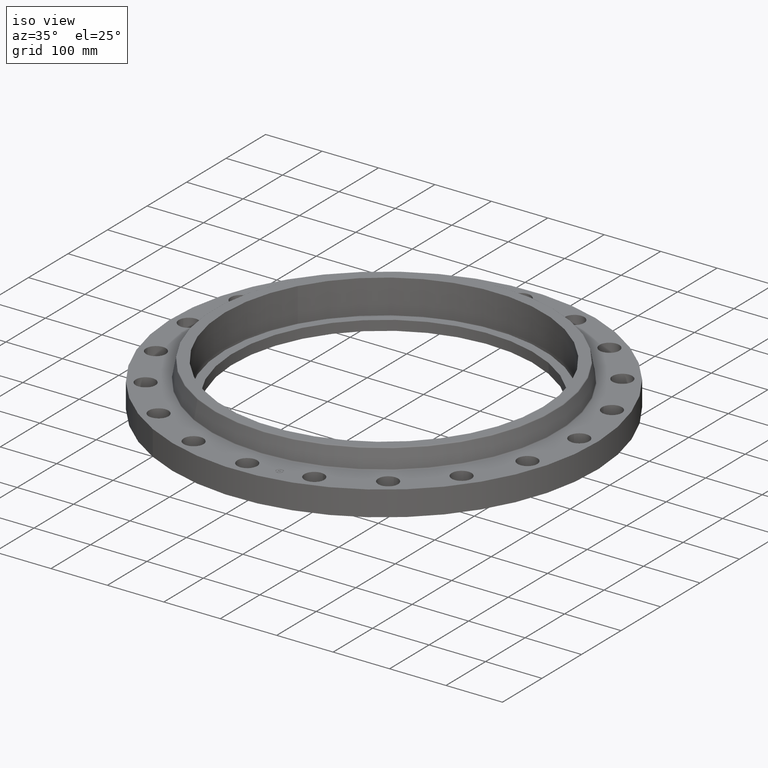
[diagram: clean part render]
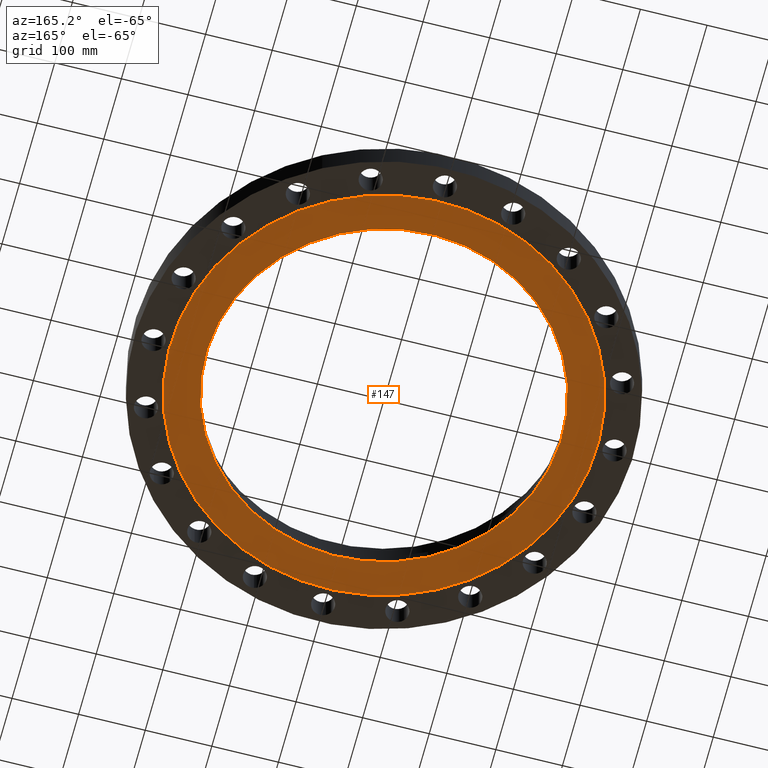
[diagram: tour spotlight — one face highlighted and labeled with its STEP entity id]
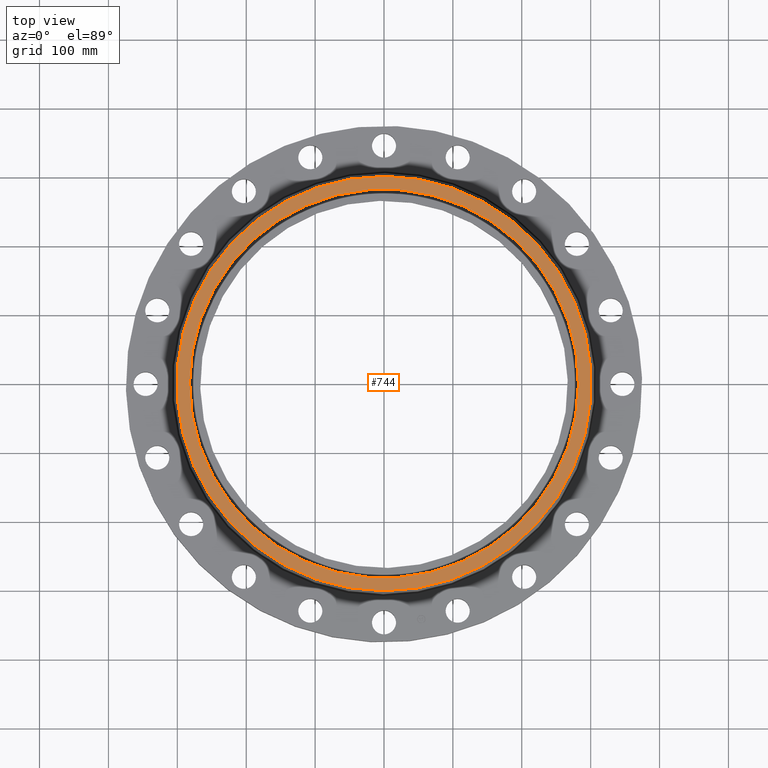
[diagram: tour spotlight — one face highlighted and labeled with its STEP entity id]
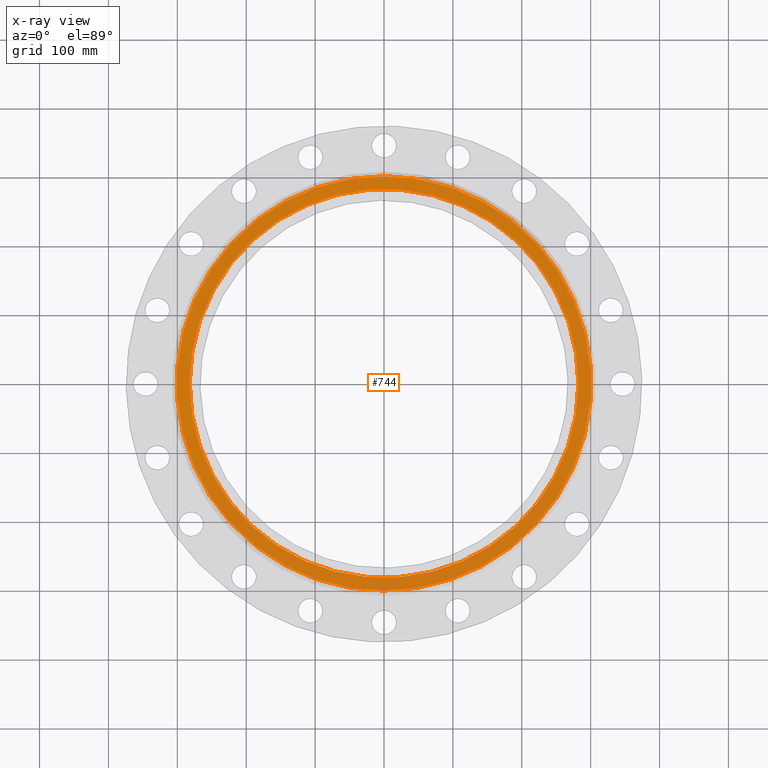
[diagram: x-ray of the same camera — body ghosted, this tour face saturated]
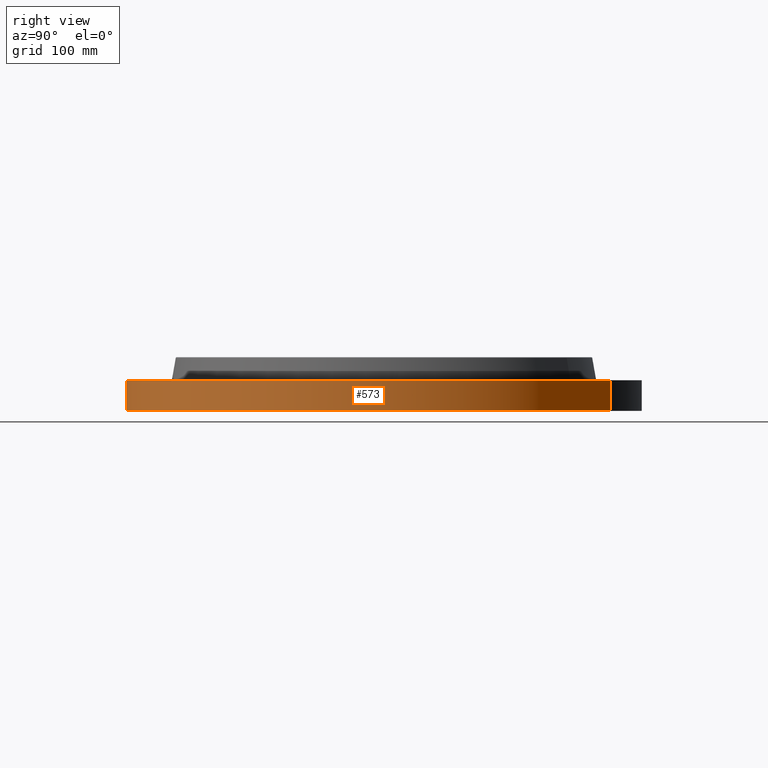
[diagram: tour spotlight — one face highlighted and labeled with its STEP entity id]
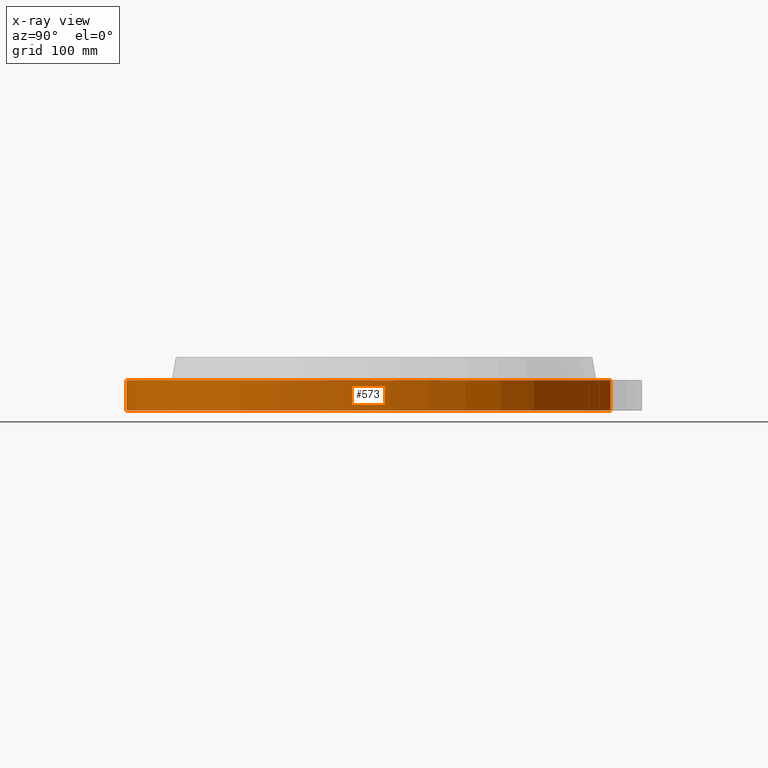
[diagram: x-ray of the same camera — body ghosted, this tour face saturated]
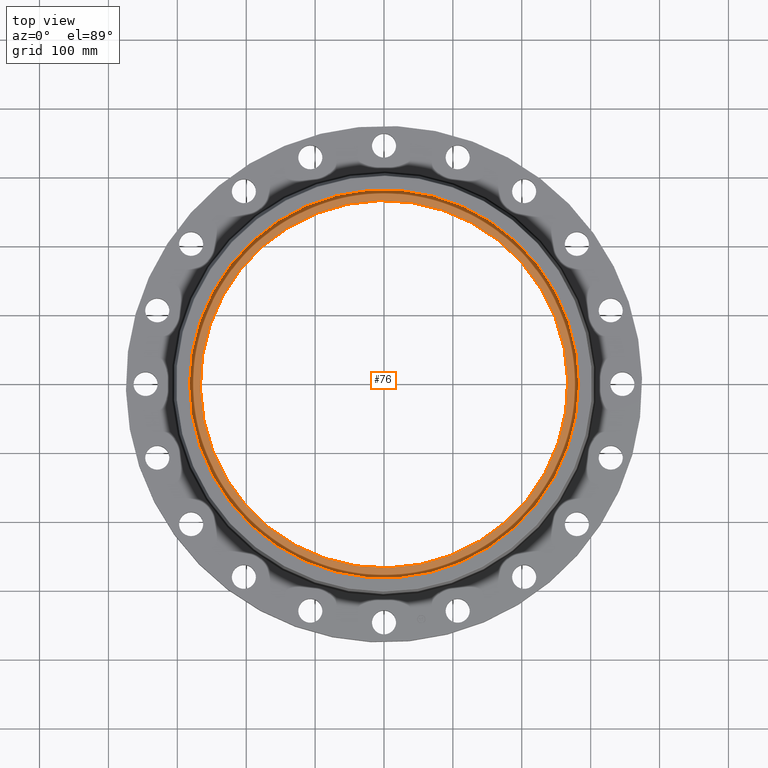
[diagram: tour spotlight — one face highlighted and labeled with its STEP entity id]
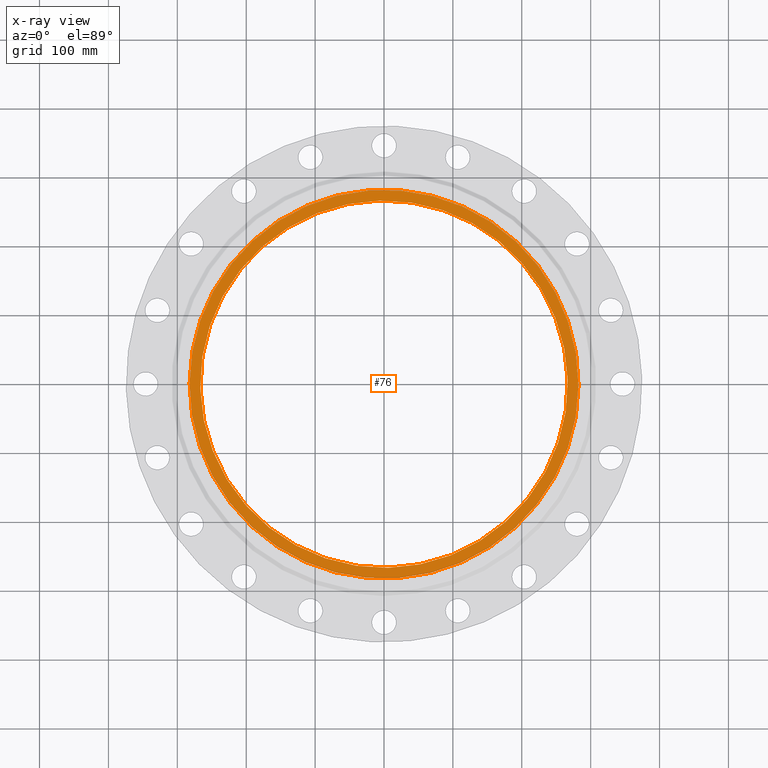
[diagram: x-ray of the same camera — body ghosted, this tour face saturated]
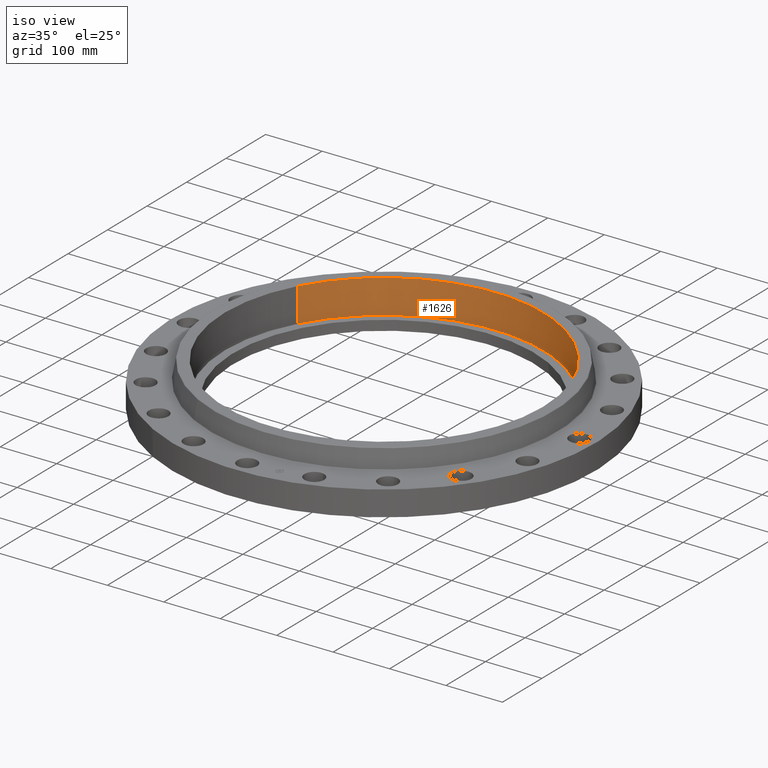
[diagram: tour spotlight — one face highlighted and labeled with its STEP entity id]
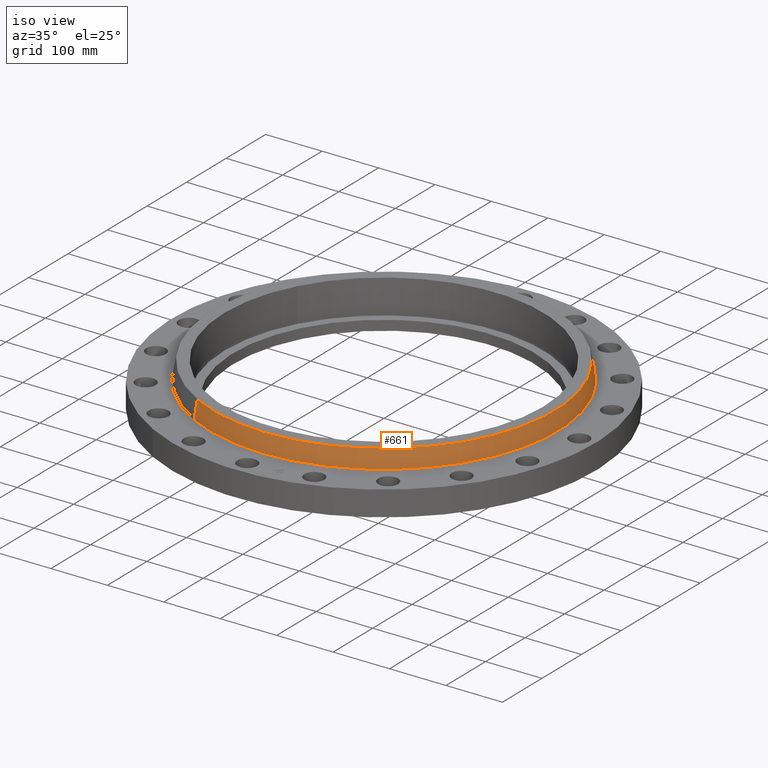
[diagram: tour spotlight — one face highlighted and labeled with its STEP entity id]
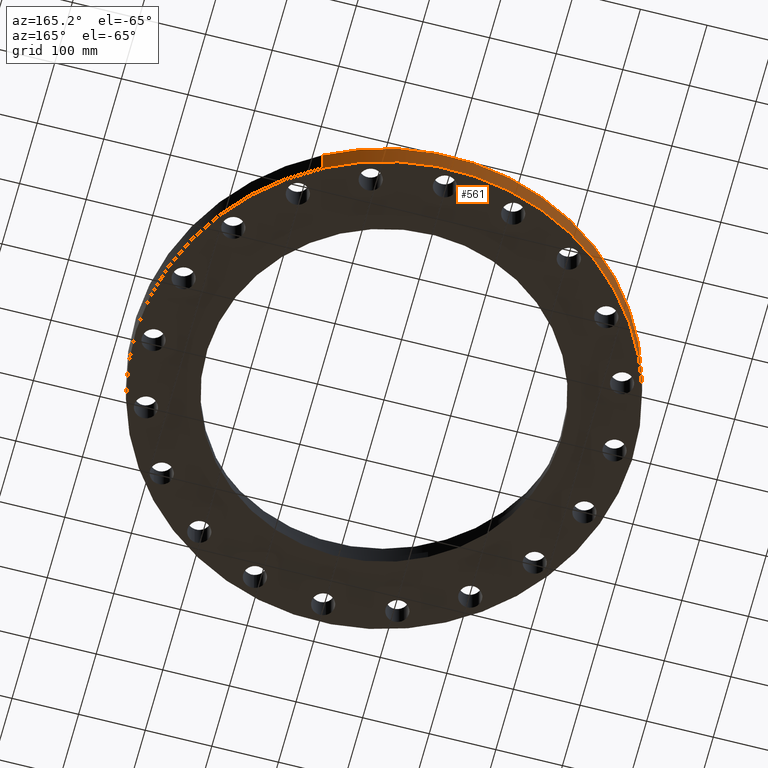
[diagram: tour spotlight — one face highlighted and labeled with its STEP entity id]
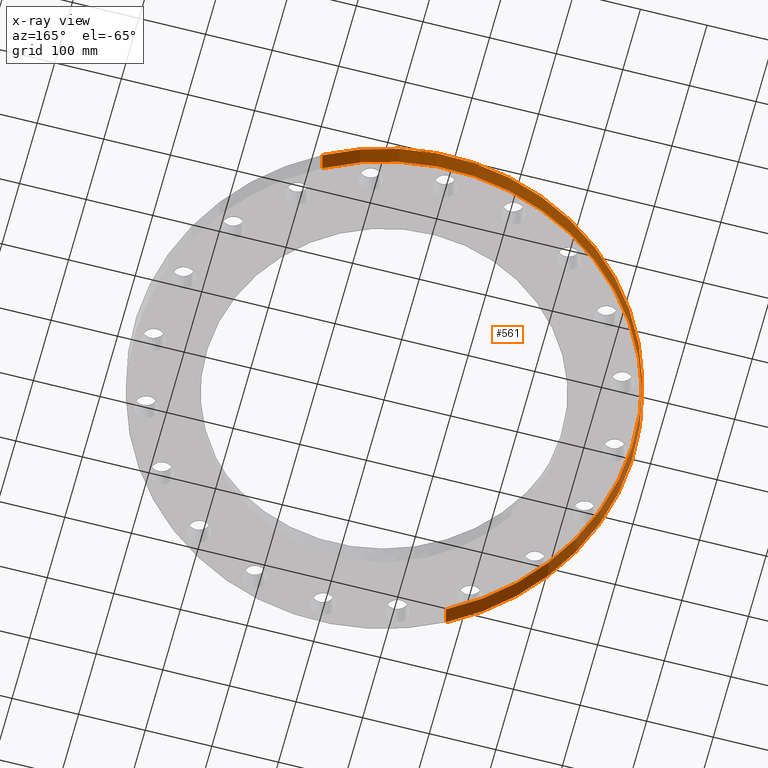
[diagram: x-ray of the same camera — body ghosted, this tour face saturated]
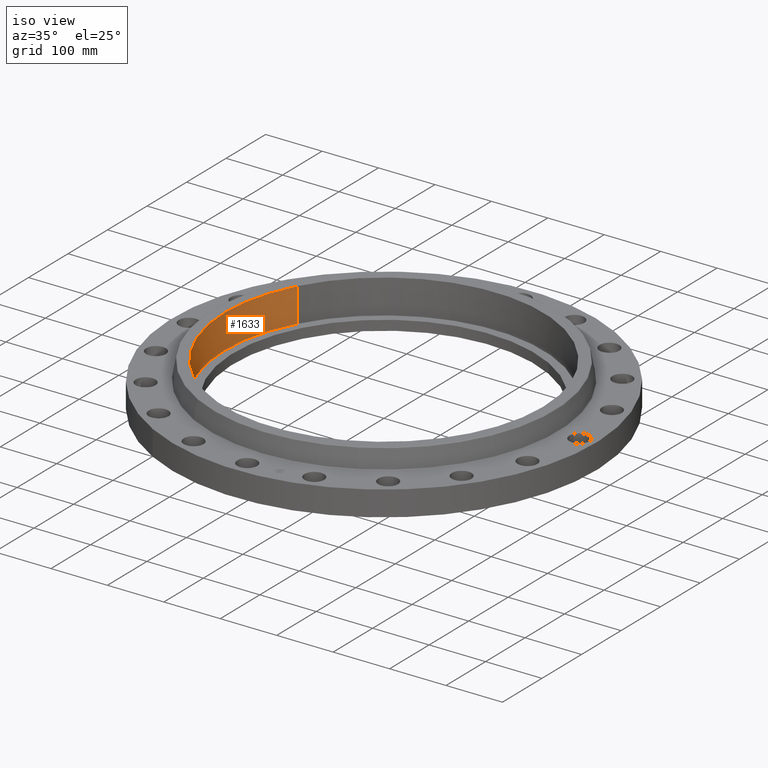
[diagram: tour spotlight — one face highlighted and labeled with its STEP entity id]
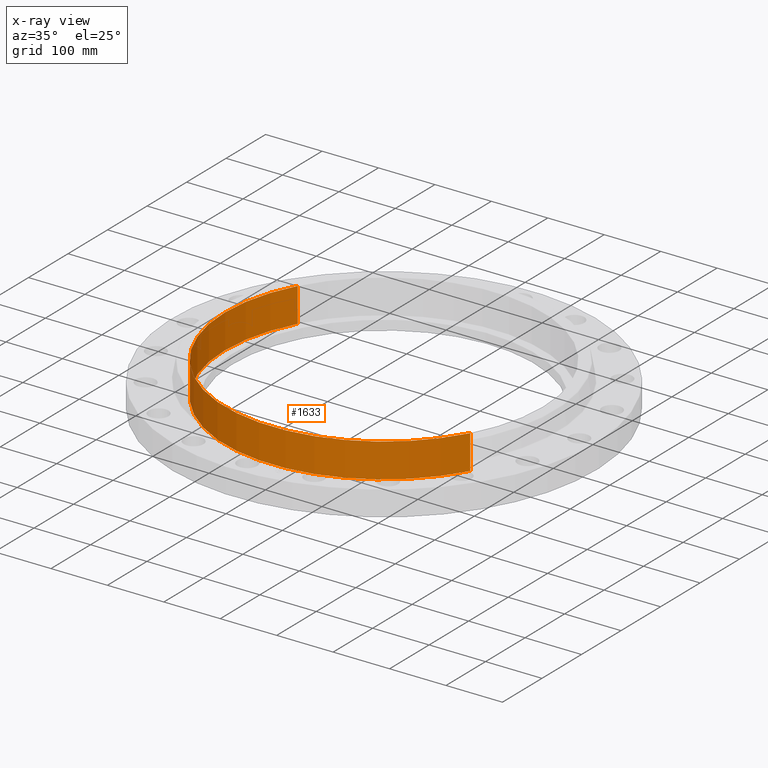
[diagram: x-ray of the same camera — body ghosted, this tour face saturated]
A machine part: a face-by-face anatomy tour. The part has 442 B-rep faces; the first image is the clean iso view, then the 8 largest visible faces are spotlighted one at a time (largest first), each with its STEP entity span.

Face 1 — auxiliary view, entity #147. In plain terms, the highlighted planar face has unit normal (0, 0, -1).
Definition (entity closure, byte-faithful):
#91=AXIS2_PLACEMENT_3D('Circle Axis2P3D',#89,#90,$) ;
#110=AXIS2_PLACEMENT_3D('Circle Axis2P3D',#108,#109,$) ;
#123=AXIS2_PLACEMENT_3D('Plane Axis2P3D',#120,#121,#122) ;
#127=AXIS2_PLACEMENT_3D('Circle Axis2P3D',#125,#126,$) ;
#136=AXIS2_PLACEMENT_3D('Circle Axis2P3D',#134,#135,$) ;
#86=CARTESIAN_POINT('Vertex',(5.03396815536,9.21461689989,-7.77680632052E-014)) ;
#89=CARTESIAN_POINT('Axis2P3D Location',(0.,0.,-7.77680632052E-014)) ;
#93=CARTESIAN_POINT('Vertex',(-5.03396815536,-9.21461689989,-7.77680632052E-014)) ;
#108=CARTESIAN_POINT('Axis2P3D Location',(0.,0.,-7.77680632052E-014)) ;
#120=CARTESIAN_POINT('Axis2P3D Location',(0.,10.5,0.)) ;
#125=CARTESIAN_POINT('Axis2P3D Location',(0.,0.,0.)) ;
#129=CARTESIAN_POINT('Vertex',(-6.0527474249,-11.0794798439,0.)) ;
#131=CARTESIAN_POINT('Vertex',(6.0527474249,11.0794798439,0.)) ;
#134=CARTESIAN_POINT('Axis2P3D Location',(0.,0.,0.)) ;
#90=DIRECTION('Axis2P3D Direction',(0.,0.,-0.0393700787402)) ;
#109=DIRECTION('Axis2P3D Direction',(0.,0.,-0.0393700787402)) ;
#121=DIRECTION('Axis2P3D Direction',(0.,0.,-0.0393700787402)) ;
#122=DIRECTION('Axis2P3D XDirection',(0.0393700787402,0.,0.)) ;
#126=DIRECTION('Axis2P3D Direction',(0.,0.,-0.0393700787402)) ;
#135=DIRECTION('Axis2P3D Direction',(0.,0.,-0.0393700787402)) ;
#140=ORIENTED_EDGE('',*,*,#133,.T.) ;
#141=ORIENTED_EDGE('',*,*,#138,.T.) ;
#144=ORIENTED_EDGE('',*,*,#95,.F.) ;
#145=ORIENTED_EDGE('',*,*,#112,.F.) ;
#146=FACE_BOUND('',#143,.T.) ;
#147=ADVANCED_FACE('PartBody',(#142,#146),#124,.T.) ;
#92=CIRCLE('generated circle',#91,10.5) ;
#111=CIRCLE('generated circle',#110,10.5) ;
#128=CIRCLE('generated circle',#127,12.6250000001) ;
#137=CIRCLE('generated circle',#136,12.6250000001) ;
#95=EDGE_CURVE('',#87,#94,#92,.T.) ;
#112=EDGE_CURVE('',#94,#87,#111,.T.) ;
#133=EDGE_CURVE('',#130,#132,#128,.T.) ;
#138=EDGE_CURVE('',#132,#130,#137,.T.) ;
#139=EDGE_LOOP('',(#140,#141)) ;
#143=EDGE_LOOP('',(#144,#145)) ;
#142=FACE_OUTER_BOUND('',#139,.T.) ;
#124=PLANE('',#123) ;
#87=VERTEX_POINT('',#86) ;
#94=VERTEX_POINT('',#93) ;
#130=VERTEX_POINT('',#129) ;
#132=VERTEX_POINT('',#131) ;

Face 2 — top view, entity #744. An x-ray twin of the same camera follows (body ghosted, this face saturated) — the face is partly hidden behind the body. In plain terms, the highlighted planar face has unit normal (0, 0, -1).
Definition (entity closure, byte-faithful):
#688=AXIS2_PLACEMENT_3D('Circle Axis2P3D',#686,#687,$) ;
#707=AXIS2_PLACEMENT_3D('Circle Axis2P3D',#705,#706,$) ;
#720=AXIS2_PLACEMENT_3D('Plane Axis2P3D',#717,#718,#719) ;
#728=AXIS2_PLACEMENT_3D('Circle Axis2P3D',#726,#727,$) ;
#737=AXIS2_PLACEMENT_3D('Circle Axis2P3D',#735,#736,$) ;
#683=CARTESIAN_POINT('Vertex',(5.67731043988,10.3922470526,3.07000000001)) ;
#686=CARTESIAN_POINT('Axis2P3D Location',(0.,0.,3.07000000001)) ;
#690=CARTESIAN_POINT('Vertex',(-5.67731043988,-10.3922470526,3.07000000001)) ;
#705=CARTESIAN_POINT('Axis2P3D Location',(0.,0.,3.07000000001)) ;
#717=CARTESIAN_POINT('Axis2P3D Location',(0.,11.8419024076,3.07000000001)) ;
#726=CARTESIAN_POINT('Axis2P3D Location',(-5.59482469102E-016,2.23792987641E-015,3.07000000001)) ;
#730=CARTESIAN_POINT('Vertex',(-9.74994226264,5.32641773391,3.07000000001)) ;
#732=CARTESIAN_POINT('Vertex',(9.74994226264,-5.32641773391,3.07000000001)) ;
#735=CARTESIAN_POINT('Axis2P3D Location',(0.,0.,3.07000000001)) ;
#687=DIRECTION('Axis2P3D Direction',(0.,0.,-0.0393700787402)) ;
#706=DIRECTION('Axis2P3D Direction',(0.,0.,-0.0393700787402)) ;
#718=DIRECTION('Axis2P3D Direction',(0.,0.,-0.0393700787402)) ;
#719=DIRECTION('Axis2P3D XDirection',(0.0393700787402,0.,0.)) ;
#727=DIRECTION('Axis2P3D Direction',(0.,0.,-0.0393700787402)) ;
#736=DIRECTION('Axis2P3D Direction',(0.,0.,-0.0393700787402)) ;
#723=ORIENTED_EDGE('',*,*,#692,.F.) ;
#724=ORIENTED_EDGE('',*,*,#709,.F.) ;
#741=ORIENTED_EDGE('',*,*,#734,.T.) ;
#742=ORIENTED_EDGE('',*,*,#739,.T.) ;
#743=FACE_BOUND('',#740,.T.) ;
#744=ADVANCED_FACE('PartBody',(#725,#743),#721,.F.) ;
#689=CIRCLE('generated circle',#688,11.8419024076) ;
#708=CIRCLE('generated circle',#707,11.8419024076) ;
#729=CIRCLE('generated circle',#728,11.11) ;
#738=CIRCLE('generated circle',#737,11.11) ;
#692=EDGE_CURVE('',#684,#691,#689,.T.) ;
#709=EDGE_CURVE('',#691,#684,#708,.T.) ;
#734=EDGE_CURVE('',#731,#733,#729,.T.) ;
#739=EDGE_CURVE('',#733,#731,#738,.T.) ;
#722=EDGE_LOOP('',(#723,#724)) ;
#740=EDGE_LOOP('',(#741,#742)) ;
#725=FACE_OUTER_BOUND('',#722,.T.) ;
#721=PLANE('',#720) ;
#684=VERTEX_POINT('',#683) ;
#691=VERTEX_POINT('',#690) ;
#731=VERTEX_POINT('',#730) ;
#733=VERTEX_POINT('',#732) ;

Face 3 — right view, entity #573. An x-ray twin of the same camera follows (body ghosted, this face saturated) — the face is partly hidden behind the body. In plain terms, the highlighted cylindrical surface (partial cylindrical patch) has radius 374.65 mm, axis along (0, 0, -1).
Definition (entity closure, byte-faithful):
#159=AXIS2_PLACEMENT_3D('Circle Axis2P3D',#157,#158,$) ;
#534=AXIS2_PLACEMENT_3D('Cylinder Axis2P3D',#531,#532,#533) ;
#564=AXIS2_PLACEMENT_3D('Circle Axis2P3D',#562,#563,$) ;
#152=CARTESIAN_POINT('Vertex',(-7.07152669444,-12.9443427879,1.67844740731E-015)) ;
#154=CARTESIAN_POINT('Vertex',(7.07152669444,12.9443427879,1.67844740731E-015)) ;
#157=CARTESIAN_POINT('Axis2P3D Location',(0.,0.,0.)) ;
#531=CARTESIAN_POINT('Axis2P3D Location',(0.,0.,1.53500000001)) ;
#536=CARTESIAN_POINT('Line Origine',(-7.07152669444,-12.9443427879,0.875000000004)) ;
#540=CARTESIAN_POINT('Vertex',(-7.07152669444,-12.9443427879,1.75000000001)) ;
#547=CARTESIAN_POINT('Vertex',(7.07152669444,12.9443427879,1.75000000001)) ;
#550=CARTESIAN_POINT('Line Origine',(7.07152669444,12.9443427879,0.875000000004)) ;
#562=CARTESIAN_POINT('Axis2P3D Location',(0.,0.,1.75000000001)) ;
#158=DIRECTION('Axis2P3D Direction',(0.,0.,-0.0393700787402)) ;
#532=DIRECTION('Axis2P3D Direction',(0.,0.,-0.0393700787402)) ;
#533=DIRECTION('Axis2P3D XDirection',(0.0188750212049,0.0345504945626,0.)) ;
#537=DIRECTION('Vector Direction',(0.,0.,-0.0393700787402)) ;
#551=DIRECTION('Vector Direction',(0.,0.,-0.0393700787402)) ;
#563=DIRECTION('Axis2P3D Direction',(0.,0.,-0.0393700787402)) ;
#538=VECTOR('Line Direction',#537,0.0393700787402) ;
#552=VECTOR('Line Direction',#551,0.0393700787402) ;
#568=ORIENTED_EDGE('',*,*,#161,.F.) ;
#569=ORIENTED_EDGE('',*,*,#554,.T.) ;
#570=ORIENTED_EDGE('',*,*,#566,.T.) ;
#571=ORIENTED_EDGE('',*,*,#542,.F.) ;
#573=ADVANCED_FACE('PartBody',(#572),#535,.T.) ;
#160=CIRCLE('generated circle',#159,14.7500000001) ;
#565=CIRCLE('generated circle',#564,14.7500000001) ;
#535=CYLINDRICAL_SURFACE('generated cylinder',#534,14.7500000001) ;
#161=EDGE_CURVE('',#155,#153,#160,.T.) ;
#542=EDGE_CURVE('',#153,#541,#539,.F.) ;
#554=EDGE_CURVE('',#155,#548,#553,.F.) ;
#566=EDGE_CURVE('',#548,#541,#565,.T.) ;
#567=EDGE_LOOP('',(#568,#569,#570,#571)) ;
#572=FACE_OUTER_BOUND('',#567,.T.) ;
#539=LINE('Line',#536,#538) ;
#553=LINE('Line',#550,#552) ;
#153=VERTEX_POINT('',#152) ;
#155=VERTEX_POINT('',#154) ;
#541=VERTEX_POINT('',#540) ;
#548=VERTEX_POINT('',#547) ;

Face 4 — top view, entity #76. An x-ray twin of the same camera follows (body ghosted, this face saturated) — the face is partly hidden behind the body. In plain terms, the highlighted planar face has unit normal (0, 0, -1).
Definition (entity closure, byte-faithful):
#38=AXIS2_PLACEMENT_3D('Plane Axis2P3D',#35,#36,#37) ;
#42=AXIS2_PLACEMENT_3D('Circle Axis2P3D',#40,#41,$) ;
#51=AXIS2_PLACEMENT_3D('Circle Axis2P3D',#49,#50,$) ;
#60=AXIS2_PLACEMENT_3D('Circle Axis2P3D',#58,#59,$) ;
#69=AXIS2_PLACEMENT_3D('Circle Axis2P3D',#67,#68,$) ;
#35=CARTESIAN_POINT('Axis2P3D Location',(0.,-6.99353086378E-017,0.690000000003)) ;
#40=CARTESIAN_POINT('Axis2P3D Location',(0.,-6.99353086378E-017,0.690000000003)) ;
#44=CARTESIAN_POINT('Vertex',(-9.74994226264,5.32641773391,0.690000000003)) ;
#46=CARTESIAN_POINT('Vertex',(9.74994226264,-5.32641773391,0.690000000003)) ;
#49=CARTESIAN_POINT('Axis2P3D Location',(0.,-6.99353086378E-017,0.690000000003)) ;
#58=CARTESIAN_POINT('Axis2P3D Location',(0.,-6.99353086378E-017,0.690000000003)) ;
#62=CARTESIAN_POINT('Vertex',(-5.03396815536,-9.21461689989,0.690000000003)) ;
#64=CARTESIAN_POINT('Vertex',(5.03396815536,9.21461689989,0.690000000003)) ;
#67=CARTESIAN_POINT('Axis2P3D Location',(-1.1189649382E-015,-1.46864148139E-015,0.690000000003)) ;
#36=DIRECTION('Axis2P3D Direction',(0.,0.,-0.0393700787402)) ;
#37=DIRECTION('Axis2P3D XDirection',(0.0393700787402,0.,0.)) ;
#41=DIRECTION('Axis2P3D Direction',(0.,0.,-0.0393700787402)) ;
#50=DIRECTION('Axis2P3D Direction',(0.,0.,-0.0393700787402)) ;
#59=DIRECTION('Axis2P3D Direction',(0.,0.,-0.0393700787402)) ;
#68=DIRECTION('Axis2P3D Direction',(0.,0.,-0.0393700787402)) ;
#55=ORIENTED_EDGE('',*,*,#48,.F.) ;
#56=ORIENTED_EDGE('',*,*,#53,.F.) ;
#73=ORIENTED_EDGE('',*,*,#66,.T.) ;
#74=ORIENTED_EDGE('',*,*,#71,.T.) ;
#75=FACE_BOUND('',#72,.T.) ;
#76=ADVANCED_FACE('PartBody',(#57,#75),#39,.F.) ;
#43=CIRCLE('generated circle',#42,11.11) ;
#52=CIRCLE('generated circle',#51,11.11) ;
#61=CIRCLE('generated circle',#60,10.5) ;
#70=CIRCLE('generated circle',#69,10.5) ;
#48=EDGE_CURVE('',#45,#47,#43,.T.) ;
#53=EDGE_CURVE('',#47,#45,#52,.T.) ;
#66=EDGE_CURVE('',#63,#65,#61,.T.) ;
#71=EDGE_CURVE('',#65,#63,#70,.T.) ;
#54=EDGE_LOOP('',(#55,#56)) ;
#72=EDGE_LOOP('',(#73,#74)) ;
#57=FACE_OUTER_BOUND('',#54,.T.) ;
#39=PLANE('',#38) ;
#45=VERTEX_POINT('',#44) ;
#47=VERTEX_POINT('',#46) ;
#63=VERTEX_POINT('',#62) ;
#65=VERTEX_POINT('',#64) ;

Face 5 — iso view, entity #1626. In plain terms, the highlighted cylindrical surface (partial cylindrical patch) has radius 282.194 mm, axis along (0, 0, -1).
Definition (entity closure, byte-faithful):
#42=AXIS2_PLACEMENT_3D('Circle Axis2P3D',#40,#41,$) ;
#728=AXIS2_PLACEMENT_3D('Circle Axis2P3D',#726,#727,$) ;
#1608=AXIS2_PLACEMENT_3D('Cylinder Axis2P3D',#1605,#1606,#1607) ;
#40=CARTESIAN_POINT('Axis2P3D Location',(0.,-6.99353086378E-017,0.690000000003)) ;
#44=CARTESIAN_POINT('Vertex',(-9.74994226264,5.32641773391,0.690000000003)) ;
#46=CARTESIAN_POINT('Vertex',(9.74994226264,-5.32641773391,0.690000000003)) ;
#726=CARTESIAN_POINT('Axis2P3D Location',(-5.59482469102E-016,2.23792987641E-015,3.07000000001)) ;
#730=CARTESIAN_POINT('Vertex',(-9.74994226264,5.32641773391,3.07000000001)) ;
#732=CARTESIAN_POINT('Vertex',(9.74994226264,-5.32641773391,3.07000000001)) ;
#1605=CARTESIAN_POINT('Axis2P3D Location',(0.,-6.99353086378E-017,3.06606299214)) ;
#1610=CARTESIAN_POINT('Line Origine',(-9.74994226264,5.32641773391,1.88000000001)) ;
#1615=CARTESIAN_POINT('Line Origine',(9.74994226264,-5.32641773391,1.88000000001)) ;
#41=DIRECTION('Axis2P3D Direction',(0.,0.,-0.0393700787402)) ;
#727=DIRECTION('Axis2P3D Direction',(0.,0.,-0.0393700787402)) ;
#1606=DIRECTION('Axis2P3D Direction',(0.,0.,-0.0393700787402)) ;
#1607=DIRECTION('Axis2P3D XDirection',(0.0345504945626,-0.0188750212049,0.)) ;
#1611=DIRECTION('Vector Direction',(0.,0.,-0.0393700787402)) ;
#1616=DIRECTION('Vector Direction',(0.,0.,-0.0393700787402)) ;
#1612=VECTOR('Line Direction',#1611,0.0393700787402) ;
#1617=VECTOR('Line Direction',#1616,0.0393700787402) ;
#1621=ORIENTED_EDGE('',*,*,#734,.F.) ;
#1622=ORIENTED_EDGE('',*,*,#1614,.F.) ;
#1623=ORIENTED_EDGE('',*,*,#48,.T.) ;
#1624=ORIENTED_EDGE('',*,*,#1619,.T.) ;
#1626=ADVANCED_FACE('PartBody',(#1625),#1609,.F.) ;
#43=CIRCLE('generated circle',#42,11.11) ;
#729=CIRCLE('generated circle',#728,11.11) ;
#1609=CYLINDRICAL_SURFACE('generated cylinder',#1608,11.11) ;
#48=EDGE_CURVE('',#45,#47,#43,.T.) ;
#734=EDGE_CURVE('',#731,#733,#729,.T.) ;
#1614=EDGE_CURVE('',#45,#731,#1613,.F.) ;
#1619=EDGE_CURVE('',#47,#733,#1618,.F.) ;
#1620=EDGE_LOOP('',(#1621,#1622,#1623,#1624)) ;
#1625=FACE_OUTER_BOUND('',#1620,.T.) ;
#1613=LINE('Line',#1610,#1612) ;
#1618=LINE('Line',#1615,#1617) ;
#45=VERTEX_POINT('',#44) ;
#47=VERTEX_POINT('',#46) ;
#731=VERTEX_POINT('',#730) ;
#733=VERTEX_POINT('',#732) ;

Face 6 — iso view, entity #661. In plain terms, the highlighted conical surface has half-angle 10 deg.
Definition (entity closure, byte-faithful):
#597=AXIS2_PLACEMENT_3D('Circle Axis2P3D',#595,#596,$) ;
#634=AXIS2_PLACEMENT_3D('Cone Axis2P3D',#631,#632,#633) ;
#645=AXIS2_PLACEMENT_3D('Circle Axis2P3D',#643,#644,$) ;
#592=CARTESIAN_POINT('Vertex',(5.80884328391,10.6330163086,1.79958110935)) ;
#595=CARTESIAN_POINT('Axis2P3D Location',(0.,0.,1.79958110935)) ;
#599=CARTESIAN_POINT('Vertex',(-5.80884328391,-10.6330163086,1.79958110935)) ;
#631=CARTESIAN_POINT('Axis2P3D Location',(0.,0.,3.02041889067)) ;
#636=CARTESIAN_POINT('Line Origine',(5.75724112152,10.5385591839,2.41000000001)) ;
#640=CARTESIAN_POINT('Vertex',(5.70563895913,10.4441020592,3.02041889067)) ;
#643=CARTESIAN_POINT('Axis2P3D Location',(0.,0.,3.02041889067)) ;
#647=CARTESIAN_POINT('Vertex',(-5.70563895913,-10.4441020592,3.02041889067)) ;
#650=CARTESIAN_POINT('Line Origine',(-5.75724112152,-10.5385591839,2.41000000001)) ;
#596=DIRECTION('Axis2P3D Direction',(0.,0.,-0.0393700787402)) ;
#632=DIRECTION('Axis2P3D Direction',(0.,0.,-0.0393700787402)) ;
#633=DIRECTION('Axis2P3D XDirection',(-0.0188750212049,-0.0345504945626,0.)) ;
#637=DIRECTION('Vector Direction',(0.00327761303565,0.00599963041829,-0.03877195878)) ;
#644=DIRECTION('Axis2P3D Direction',(0.,0.,-0.0393700787402)) ;
#651=DIRECTION('Vector Direction',(-0.00327761303565,-0.00599963041829,-0.03877195878)) ;
#638=VECTOR('Line Direction',#637,0.0393700787402) ;
#652=VECTOR('Line Direction',#651,0.0393700787402) ;
#656=ORIENTED_EDGE('',*,*,#601,.F.) ;
#657=ORIENTED_EDGE('',*,*,#642,.T.) ;
#658=ORIENTED_EDGE('',*,*,#649,.T.) ;
#659=ORIENTED_EDGE('',*,*,#654,.F.) ;
#661=ADVANCED_FACE('PartBody',(#660),#635,.T.) ;
#598=CIRCLE('generated circle',#597,12.1162575127) ;
#646=CIRCLE('generated circle',#645,11.9009908728) ;
#635=CONICAL_SURFACE('Cone',#634,11.9009908728,0.174532925199) ;
#601=EDGE_CURVE('',#593,#600,#598,.T.) ;
#642=EDGE_CURVE('',#593,#641,#639,.F.) ;
#649=EDGE_CURVE('',#641,#648,#646,.T.) ;
#654=EDGE_CURVE('',#600,#648,#653,.F.) ;
#655=EDGE_LOOP('',(#656,#657,#658,#659)) ;
#660=FACE_OUTER_BOUND('',#655,.T.) ;
#639=LINE('Line',#636,#638) ;
#653=LINE('Line',#650,#652) ;
#593=VERTEX_POINT('',#592) ;
#600=VERTEX_POINT('',#599) ;
#641=VERTEX_POINT('',#640) ;
#648=VERTEX_POINT('',#647) ;

Face 7 — auxiliary view, entity #561. An x-ray twin of the same camera follows (body ghosted, this face saturated) — the face is partly hidden behind the body. In plain terms, the highlighted cylindrical surface (partial cylindrical patch) has radius 374.65 mm, axis along (0, 0, -1).
Definition (entity closure, byte-faithful):
#150=AXIS2_PLACEMENT_3D('Circle Axis2P3D',#148,#149,$) ;
#534=AXIS2_PLACEMENT_3D('Cylinder Axis2P3D',#531,#532,#533) ;
#545=AXIS2_PLACEMENT_3D('Circle Axis2P3D',#543,#544,$) ;
#148=CARTESIAN_POINT('Axis2P3D Location',(0.,0.,0.)) ;
#152=CARTESIAN_POINT('Vertex',(-7.07152669444,-12.9443427879,1.67844740731E-015)) ;
#154=CARTESIAN_POINT('Vertex',(7.07152669444,12.9443427879,1.67844740731E-015)) ;
#531=CARTESIAN_POINT('Axis2P3D Location',(0.,0.,1.53500000001)) ;
#536=CARTESIAN_POINT('Line Origine',(-7.07152669444,-12.9443427879,0.875000000004)) ;
#540=CARTESIAN_POINT('Vertex',(-7.07152669444,-12.9443427879,1.75000000001)) ;
#543=CARTESIAN_POINT('Axis2P3D Location',(0.,0.,1.75000000001)) ;
#547=CARTESIAN_POINT('Vertex',(7.07152669444,12.9443427879,1.75000000001)) ;
#550=CARTESIAN_POINT('Line Origine',(7.07152669444,12.9443427879,0.875000000004)) ;
#149=DIRECTION('Axis2P3D Direction',(0.,0.,-0.0393700787402)) ;
#532=DIRECTION('Axis2P3D Direction',(0.,0.,-0.0393700787402)) ;
#533=DIRECTION('Axis2P3D XDirection',(0.0188750212049,0.0345504945626,0.)) ;
#537=DIRECTION('Vector Direction',(0.,0.,-0.0393700787402)) ;
#544=DIRECTION('Axis2P3D Direction',(0.,0.,-0.0393700787402)) ;
#551=DIRECTION('Vector Direction',(0.,0.,-0.0393700787402)) ;
#538=VECTOR('Line Direction',#537,0.0393700787402) ;
#552=VECTOR('Line Direction',#551,0.0393700787402) ;
#556=ORIENTED_EDGE('',*,*,#156,.F.) ;
#557=ORIENTED_EDGE('',*,*,#542,.T.) ;
#558=ORIENTED_EDGE('',*,*,#549,.T.) ;
#559=ORIENTED_EDGE('',*,*,#554,.F.) ;
#561=ADVANCED_FACE('PartBody',(#560),#535,.T.) ;
#151=CIRCLE('generated circle',#150,14.7500000001) ;
#546=CIRCLE('generated circle',#545,14.7500000001) ;
#535=CYLINDRICAL_SURFACE('generated cylinder',#534,14.7500000001) ;
#156=EDGE_CURVE('',#153,#155,#151,.T.) ;
#542=EDGE_CURVE('',#153,#541,#539,.F.) ;
#549=EDGE_CURVE('',#541,#548,#546,.T.) ;
#554=EDGE_CURVE('',#155,#548,#553,.F.) ;
#555=EDGE_LOOP('',(#556,#557,#558,#559)) ;
#560=FACE_OUTER_BOUND('',#555,.T.) ;
#539=LINE('Line',#536,#538) ;
#553=LINE('Line',#550,#552) ;
#153=VERTEX_POINT('',#152) ;
#155=VERTEX_POINT('',#154) ;
#541=VERTEX_POINT('',#540) ;
#548=VERTEX_POINT('',#547) ;

Face 8 — iso view, entity #1633. An x-ray twin of the same camera follows (body ghosted, this face saturated) — the face is partly hidden behind the body. In plain terms, the highlighted cylindrical surface (partial cylindrical patch) has radius 282.194 mm, axis along (0, 0, -1).
Definition (entity closure, byte-faithful):
#51=AXIS2_PLACEMENT_3D('Circle Axis2P3D',#49,#50,$) ;
#737=AXIS2_PLACEMENT_3D('Circle Axis2P3D',#735,#736,$) ;
#1608=AXIS2_PLACEMENT_3D('Cylinder Axis2P3D',#1605,#1606,#1607) ;
#44=CARTESIAN_POINT('Vertex',(-9.74994226264,5.32641773391,0.690000000003)) ;
#46=CARTESIAN_POINT('Vertex',(9.74994226264,-5.32641773391,0.690000000003)) ;
#49=CARTESIAN_POINT('Axis2P3D Location',(0.,-6.99353086378E-017,0.690000000003)) ;
#730=CARTESIAN_POINT('Vertex',(-9.74994226264,5.32641773391,3.07000000001)) ;
#732=CARTESIAN_POINT('Vertex',(9.74994226264,-5.32641773391,3.07000000001)) ;
#735=CARTESIAN_POINT('Axis2P3D Location',(0.,0.,3.07000000001)) ;
#1605=CARTESIAN_POINT('Axis2P3D Location',(0.,-6.99353086378E-017,3.06606299214)) ;
#1610=CARTESIAN_POINT('Line Origine',(-9.74994226264,5.32641773391,1.88000000001)) ;
#1615=CARTESIAN_POINT('Line Origine',(9.74994226264,-5.32641773391,1.88000000001)) ;
#50=DIRECTION('Axis2P3D Direction',(0.,0.,-0.0393700787402)) ;
#736=DIRECTION('Axis2P3D Direction',(0.,0.,-0.0393700787402)) ;
#1606=DIRECTION('Axis2P3D Direction',(0.,0.,-0.0393700787402)) ;
#1607=DIRECTION('Axis2P3D XDirection',(0.0345504945626,-0.0188750212049,0.)) ;
#1611=DIRECTION('Vector Direction',(0.,0.,-0.0393700787402)) ;
#1616=DIRECTION('Vector Direction',(0.,0.,-0.0393700787402)) ;
#1612=VECTOR('Line Direction',#1611,0.0393700787402) ;
#1617=VECTOR('Line Direction',#1616,0.0393700787402) ;
#1628=ORIENTED_EDGE('',*,*,#739,.F.) ;
#1629=ORIENTED_EDGE('',*,*,#1619,.F.) ;
#1630=ORIENTED_EDGE('',*,*,#53,.T.) ;
#1631=ORIENTED_EDGE('',*,*,#1614,.T.) ;
#1633=ADVANCED_FACE('PartBody',(#1632),#1609,.F.) ;
#52=CIRCLE('generated circle',#51,11.11) ;
#738=CIRCLE('generated circle',#737,11.11) ;
#1609=CYLINDRICAL_SURFACE('generated cylinder',#1608,11.11) ;
#53=EDGE_CURVE('',#47,#45,#52,.T.) ;
#739=EDGE_CURVE('',#733,#731,#738,.T.) ;
#1614=EDGE_CURVE('',#45,#731,#1613,.F.) ;
#1619=EDGE_CURVE('',#47,#733,#1618,.F.) ;
#1627=EDGE_LOOP('',(#1628,#1629,#1630,#1631)) ;
#1632=FACE_OUTER_BOUND('',#1627,.T.) ;
#1613=LINE('Line',#1610,#1612) ;
#1618=LINE('Line',#1615,#1617) ;
#45=VERTEX_POINT('',#44) ;
#47=VERTEX_POINT('',#46) ;
#731=VERTEX_POINT('',#730) ;
#733=VERTEX_POINT('',#732) ;